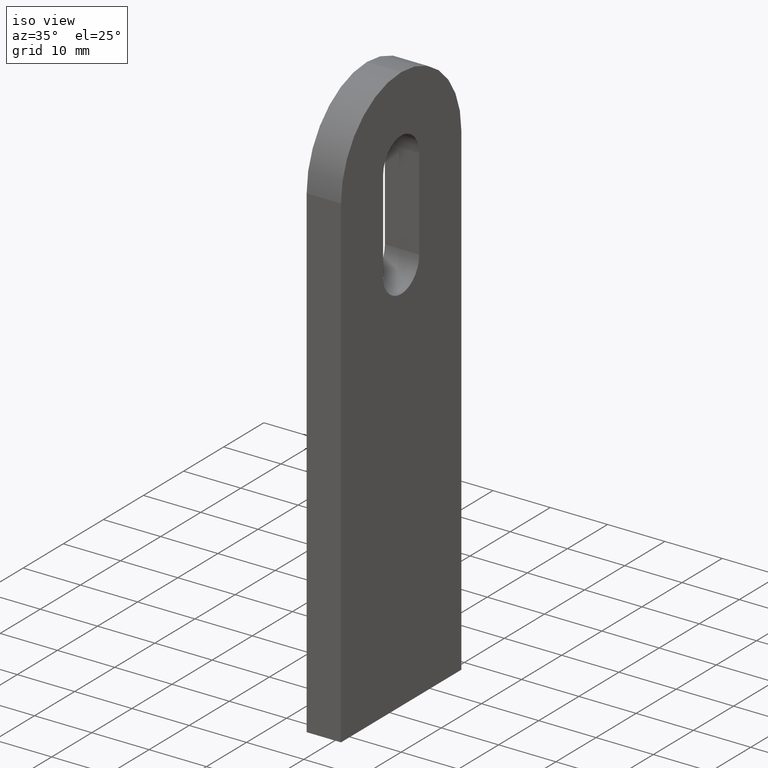
[diagram: clean part render]
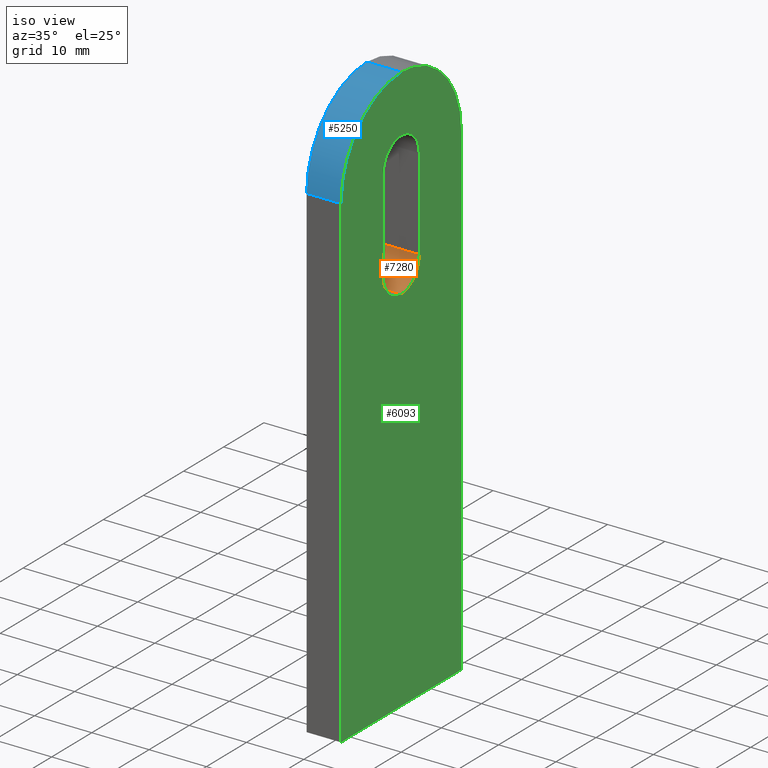
[diagram: same view with three faces highlighted in distinct colors, each labeled with its STEP entity id]
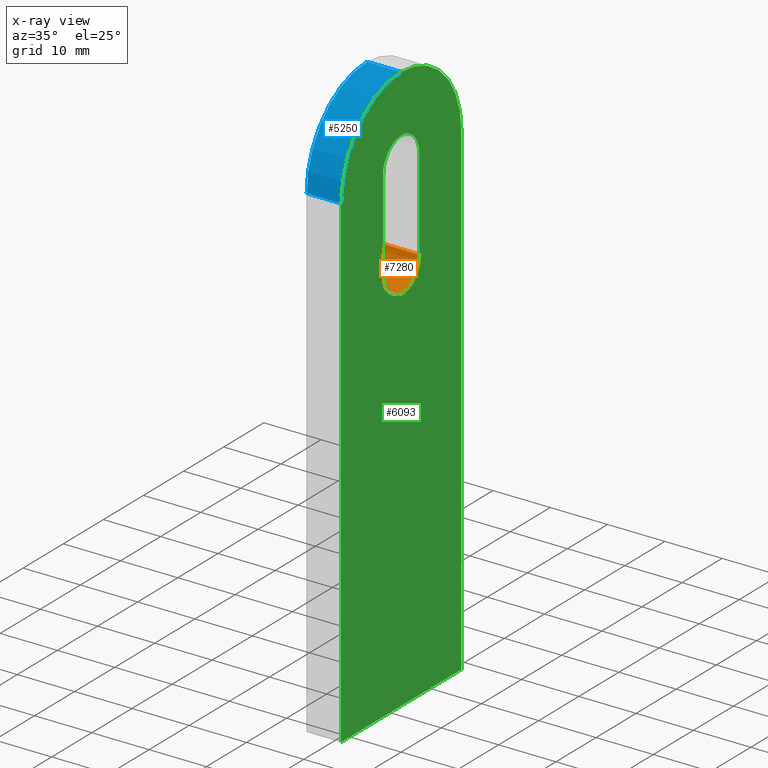
[diagram: x-ray of the same camera — body ghosted, the three highlighted faces saturated]
A machine part, iso view with three faces highlighted in distinct colors.
The next image is the same camera in x-ray (body ghosted, the three faces saturated) — at least one of them is partly hidden behind the body in this view.
Their STEP definitions:

[orange] entity #7280 — the highlighted cylindrical surface (edge-blend (fillet) strip) has radius 4.5 mm, axis along (1, -0, -0).
#91 = AXIS2_PLACEMENT_3D ( 'NONE', #1972, #9915, #1940 ) ;
#136 = ORIENTED_EDGE ( 'NONE', *, *, #734, .T. ) ;
#734 = EDGE_CURVE ( 'NONE', #8084, #8982, #1523, .T. ) ;
#858 = DIRECTION ( 'NONE',  ( 1.000000000000000000, -0.0000000000000000000, -0.0000000000000000000 ) ) ;
#1181 = VERTEX_POINT ( 'NONE', #7038 ) ;
#1436 = CARTESIAN_POINT ( 'NONE',  ( 3.000000000000000000, 7.966394000823676000E-016, 69.50000000000000000 ) ) ;
#1497 = EDGE_CURVE ( 'NONE', #1181, #8084, #6927, .T. ) ;
#1523 = CIRCLE ( 'NONE', #8381, 4.500000000000003600 ) ;
#1940 = DIRECTION ( 'NONE',  ( 0.0000000000000000000, 0.0000000000000000000, -1.000000000000000000 ) ) ;
#1972 = CARTESIAN_POINT ( 'NONE',  ( -3.000000000000000000, 7.966394000823676000E-016, 69.50000000000000000 ) ) ;
#2862 = ORIENTED_EDGE ( 'NONE', *, *, #6267, .F. ) ;
#3808 = DIRECTION ( 'NONE',  ( 1.000000000000000000, -0.0000000000000000000, -0.0000000000000000000 ) ) ;
#4408 = CARTESIAN_POINT ( 'NONE',  ( -3.000000000000000000, 7.966394000823676000E-016, 69.50000000000000000 ) ) ;
#4488 = CARTESIAN_POINT ( 'NONE',  ( 3.000000000000000000, 4.500000000000003600, 69.50000000000000000 ) ) ;
#4587 = CARTESIAN_POINT ( 'NONE',  ( -3.000000000000000000, 4.500000000000003600, 69.50000000000000000 ) ) ;
#5433 = DIRECTION ( 'NONE',  ( 0.0000000000000000000, 0.0000000000000000000, -1.000000000000000000 ) ) ;
#5522 = VECTOR ( 'NONE', #3808, 1000.000000000000000 ) ;
#6267 = EDGE_CURVE ( 'NONE', #6726, #8982, #7776, .T. ) ;
#6583 = AXIS2_PLACEMENT_3D ( 'NONE', #4408, #10008, #6746 ) ;
#6689 = VECTOR ( 'NONE', #858, 1000.000000000000000 ) ;
#6713 = CARTESIAN_POINT ( 'NONE',  ( -3.000000000000000000, 7.966394000823676000E-016, 65.00000000000000000 ) ) ;
#6726 = VERTEX_POINT ( 'NONE', #7636 ) ;
#6746 = DIRECTION ( 'NONE',  ( 0.0000000000000000000, 0.0000000000000000000, -1.000000000000000000 ) ) ;
#6860 = EDGE_LOOP ( 'NONE', ( #8912, #10209, #136, #2862 ) ) ;
#6927 = LINE ( 'NONE', #6713, #6689 ) ;
#7038 = CARTESIAN_POINT ( 'NONE',  ( -3.000000000000000000, 7.966394000823676000E-016, 65.00000000000000000 ) ) ;
#7195 = CARTESIAN_POINT ( 'NONE',  ( 3.000000000000000000, 7.966394000823676000E-016, 65.00000000000000000 ) ) ;
#7280 = ADVANCED_FACE ( 'NONE', ( #9626 ), #9134, .F. ) ;
#7480 = EDGE_CURVE ( 'NONE', #1181, #6726, #7504, .T. ) ;
#7504 = CIRCLE ( 'NONE', #6583, 4.500000000000003600 ) ;
#7636 = CARTESIAN_POINT ( 'NONE',  ( -3.000000000000000000, 4.500000000000003600, 69.50000000000000000 ) ) ;
#7776 = LINE ( 'NONE', #4587, #5522 ) ;
#8084 = VERTEX_POINT ( 'NONE', #7195 ) ;
#8381 = AXIS2_PLACEMENT_3D ( 'NONE', #1436, #9339, #5433 ) ;
#8912 = ORIENTED_EDGE ( 'NONE', *, *, #7480, .F. ) ;
#8982 = VERTEX_POINT ( 'NONE', #4488 ) ;
#9134 = CYLINDRICAL_SURFACE ( 'NONE', #91, 4.500000000000003600 ) ;
#9339 = DIRECTION ( 'NONE',  ( 1.000000000000000000, 0.0000000000000000000, 0.0000000000000000000 ) ) ;
#9626 = FACE_OUTER_BOUND ( 'NONE', #6860, .T. ) ;
#9915 = DIRECTION ( 'NONE',  ( 1.000000000000000000, -0.0000000000000000000, -0.0000000000000000000 ) ) ;
#10008 = DIRECTION ( 'NONE',  ( 1.000000000000000000, 0.0000000000000000000, 0.0000000000000000000 ) ) ;
#10209 = ORIENTED_EDGE ( 'NONE', *, *, #1497, .T. ) ;

[blue] entity #5250 — the highlighted cylindrical surface (partial cylindrical patch) has radius 15 mm, axis along (-1, -0, -0).
#92 = CARTESIAN_POINT ( 'NONE',  ( 3.000000000000000000, -15.00000000000000200, 84.99999999999998600 ) ) ;
#459 = DIRECTION ( 'NONE',  ( 0.0000000000000000000, 0.0000000000000000000, 1.000000000000000000 ) ) ;
#831 = VECTOR ( 'NONE', #9018, 1000.000000000000000 ) ;
#1056 = CARTESIAN_POINT ( 'NONE',  ( 3.000000000000000000, 0.0000000000000000000, 99.99999999999998600 ) ) ;
#1318 = ORIENTED_EDGE ( 'NONE', *, *, #1544, .F. ) ;
#1515 = CIRCLE ( 'NONE', #6488, 15.00000000000000000 ) ;
#1544 = EDGE_CURVE ( 'NONE', #2080, #9513, #1515, .T. ) ;
#2080 = VERTEX_POINT ( 'NONE', #9323 ) ;
#2423 = EDGE_CURVE ( 'NONE', #3825, #2080, #9807, .T. ) ;
#2459 = CARTESIAN_POINT ( 'NONE',  ( -3.000000000000000000, 0.0000000000000000000, 99.99999999999998600 ) ) ;
#2473 = DIRECTION ( 'NONE',  ( -1.000000000000000000, -0.0000000000000000000, -0.0000000000000000000 ) ) ;
#2493 = FACE_OUTER_BOUND ( 'NONE', #7500, .T. ) ;
#2659 = ORIENTED_EDGE ( 'NONE', *, *, #7476, .T. ) ;
#3064 = CARTESIAN_POINT ( 'NONE',  ( 3.000000000000000000, 0.0000000000000000000, 84.99999999999998600 ) ) ;
#3825 = VERTEX_POINT ( 'NONE', #9297 ) ;
#3919 = DIRECTION ( 'NONE',  ( -1.000000000000000000, -0.0000000000000000000, -0.0000000000000000000 ) ) ;
#4513 = AXIS2_PLACEMENT_3D ( 'NONE', #3064, #3919, #5552 ) ;
#4528 = VERTEX_POINT ( 'NONE', #7724 ) ;
#4580 = ORIENTED_EDGE ( 'NONE', *, *, #2423, .F. ) ;
#5049 = CARTESIAN_POINT ( 'NONE',  ( 3.000000000000000000, 0.0000000000000000000, 84.99999999999998600 ) ) ;
#5125 = DIRECTION ( 'NONE',  ( -1.000000000000000000, -0.0000000000000000000, 0.0000000000000000000 ) ) ;
#5250 = ADVANCED_FACE ( 'NONE', ( #2493 ), #5913, .T. ) ;
#5421 = CARTESIAN_POINT ( 'NONE',  ( -3.000000000000000000, 0.0000000000000000000, 84.99999999999998600 ) ) ;
#5552 = DIRECTION ( 'NONE',  ( 0.0000000000000000000, 0.0000000000000000000, 1.000000000000000000 ) ) ;
#5913 = CYLINDRICAL_SURFACE ( 'NONE', #4513, 15.00000000000000000 ) ;
#6388 = AXIS2_PLACEMENT_3D ( 'NONE', #5049, #5125, #8376 ) ;
#6488 = AXIS2_PLACEMENT_3D ( 'NONE', #5421, #8626, #459 ) ;
#6963 = ORIENTED_EDGE ( 'NONE', *, *, #9617, .T. ) ;
#7421 = VECTOR ( 'NONE', #2473, 1000.000000000000000 ) ;
#7476 = EDGE_CURVE ( 'NONE', #4528, #9513, #7632, .T. ) ;
#7500 = EDGE_LOOP ( 'NONE', ( #6963, #2659, #1318, #4580 ) ) ;
#7632 = LINE ( 'NONE', #1056, #831 ) ;
#7724 = CARTESIAN_POINT ( 'NONE',  ( 3.000000000000000000, 0.0000000000000000000, 99.99999999999998600 ) ) ;
#8239 = CIRCLE ( 'NONE', #6388, 15.00000000000000000 ) ;
#8376 = DIRECTION ( 'NONE',  ( 0.0000000000000000000, 0.0000000000000000000, 1.000000000000000000 ) ) ;
#8626 = DIRECTION ( 'NONE',  ( -1.000000000000000000, -0.0000000000000000000, 0.0000000000000000000 ) ) ;
#9018 = DIRECTION ( 'NONE',  ( -1.000000000000000000, -0.0000000000000000000, -0.0000000000000000000 ) ) ;
#9297 = CARTESIAN_POINT ( 'NONE',  ( 3.000000000000000000, -15.00000000000000200, 84.99999999999998600 ) ) ;
#9323 = CARTESIAN_POINT ( 'NONE',  ( -3.000000000000000000, -15.00000000000000200, 84.99999999999998600 ) ) ;
#9513 = VERTEX_POINT ( 'NONE', #2459 ) ;
#9617 = EDGE_CURVE ( 'NONE', #3825, #4528, #8239, .T. ) ;
#9807 = LINE ( 'NONE', #92, #7421 ) ;

[green] entity #6093 — the highlighted planar face has unit normal (-1, -0, 0).
#19 = EDGE_LOOP ( 'NONE', ( #2183, #1416, #5048, #2879, #6787 ) ) ;
#32 = AXIS2_PLACEMENT_3D ( 'NONE', #9121, #9929, #6738 ) ;
#74 = FACE_OUTER_BOUND ( 'NONE', #19, .T. ) ;
#255 = CARTESIAN_POINT ( 'NONE',  ( 3.000000000000000000, 7.966394000823676000E-016, 69.50000000000000000 ) ) ;
#329 = EDGE_CURVE ( 'NONE', #7712, #9408, #4953, .T. ) ;
#388 = DIRECTION ( 'NONE',  ( 0.0000000000000000000, 0.0000000000000000000, -1.000000000000000000 ) ) ;
#489 = ORIENTED_EDGE ( 'NONE', *, *, #9344, .F. ) ;
#538 = DIRECTION ( 'NONE',  ( -0.0000000000000000000, -1.626303258728257900E-016, 1.000000000000000000 ) ) ;
#719 = LINE ( 'NONE', #5669, #2754 ) ;
#734 = EDGE_CURVE ( 'NONE', #8084, #8982, #1523, .T. ) ;
#809 = EDGE_CURVE ( 'NONE', #8982, #7712, #7701, .T. ) ;
#898 = CARTESIAN_POINT ( 'NONE',  ( 3.000000000000000000, -4.500000000000000000, 69.50000000000000000 ) ) ;
#1097 = DIRECTION ( 'NONE',  ( 1.000000000000000000, 0.0000000000000000000, 0.0000000000000000000 ) ) ;
#1278 = ORIENTED_EDGE ( 'NONE', *, *, #734, .F. ) ;
#1312 = VERTEX_POINT ( 'NONE', #898 ) ;
#1416 = ORIENTED_EDGE ( 'NONE', *, *, #6136, .F. ) ;
#1436 = CARTESIAN_POINT ( 'NONE',  ( 3.000000000000000000, 7.966394000823676000E-016, 69.50000000000000000 ) ) ;
#1523 = CIRCLE ( 'NONE', #8381, 4.500000000000003600 ) ;
#1553 = VERTEX_POINT ( 'NONE', #6119 ) ;
#1628 = EDGE_LOOP ( 'NONE', ( #489, #1748, #8941, #1278, #2539 ) ) ;
#1748 = ORIENTED_EDGE ( 'NONE', *, *, #329, .F. ) ;
#1861 = CARTESIAN_POINT ( 'NONE',  ( 3.000000000000000000, -15.00000000000000000, -3.061616997868383000E-015 ) ) ;
#2031 = VERTEX_POINT ( 'NONE', #6054 ) ;
#2043 = AXIS2_PLACEMENT_3D ( 'NONE', #2768, #5979, #388 ) ;
#2183 = ORIENTED_EDGE ( 'NONE', *, *, #9617, .F. ) ;
#2311 = CIRCLE ( 'NONE', #32, 15.00000000000000000 ) ;
#2539 = ORIENTED_EDGE ( 'NONE', *, *, #8206, .F. ) ;
#2581 = LINE ( 'NONE', #2905, #6593 ) ;
#2715 = LINE ( 'NONE', #6154, #9250 ) ;
#2754 = VECTOR ( 'NONE', #9566, 1000.000000000000000 ) ;
#2768 = CARTESIAN_POINT ( 'NONE',  ( 3.000000000000000000, -1.776356839400250900E-015, 85.49999999999998600 ) ) ;
#2879 = ORIENTED_EDGE ( 'NONE', *, *, #4129, .F. ) ;
#2905 = CARTESIAN_POINT ( 'NONE',  ( 3.000000000000000000, -4.500000000000000900, 85.49999999999998600 ) ) ;
#2917 = DIRECTION ( 'NONE',  ( 0.0000000000000000000, 1.626303258728257900E-016, -1.000000000000000000 ) ) ;
#3736 = CIRCLE ( 'NONE', #8273, 4.500000000000003600 ) ;
#3825 = VERTEX_POINT ( 'NONE', #9297 ) ;
#4129 = EDGE_CURVE ( 'NONE', #1553, #2031, #719, .T. ) ;
#4136 = LINE ( 'NONE', #7798, #10273 ) ;
#4488 = CARTESIAN_POINT ( 'NONE',  ( 3.000000000000000000, 4.500000000000003600, 69.50000000000000000 ) ) ;
#4528 = VERTEX_POINT ( 'NONE', #7724 ) ;
#4645 = DIRECTION ( 'NONE',  ( 0.0000000000000000000, -2.040851148208008500E-017, 1.000000000000000000 ) ) ;
#4953 = CIRCLE ( 'NONE', #2043, 4.500000000000003600 ) ;
#5048 = ORIENTED_EDGE ( 'NONE', *, *, #8553, .F. ) ;
#5049 = CARTESIAN_POINT ( 'NONE',  ( 3.000000000000000000, 0.0000000000000000000, 84.99999999999998600 ) ) ;
#5125 = DIRECTION ( 'NONE',  ( -1.000000000000000000, -0.0000000000000000000, 0.0000000000000000000 ) ) ;
#5433 = DIRECTION ( 'NONE',  ( 0.0000000000000000000, 0.0000000000000000000, -1.000000000000000000 ) ) ;
#5669 = CARTESIAN_POINT ( 'NONE',  ( 3.000000000000000000, 15.00000000000000200, 84.99999999999998600 ) ) ;
#5968 = VECTOR ( 'NONE', #538, 1000.000000000000000 ) ;
#5979 = DIRECTION ( 'NONE',  ( 1.000000000000000000, 0.0000000000000000000, 0.0000000000000000000 ) ) ;
#6054 = CARTESIAN_POINT ( 'NONE',  ( 3.000000000000000000, 15.00000000000000000, -3.061616997868383000E-015 ) ) ;
#6093 = ADVANCED_FACE ( 'NONE', ( #10396, #74 ), #9330, .F. ) ;
#6119 = CARTESIAN_POINT ( 'NONE',  ( 3.000000000000000000, 15.00000000000000200, 84.99999999999998600 ) ) ;
#6136 = EDGE_CURVE ( 'NONE', #9608, #3825, #4136, .T. ) ;
#6154 = CARTESIAN_POINT ( 'NONE',  ( 3.000000000000000000, 15.00000000000000000, -3.061616997868383000E-015 ) ) ;
#6205 = CARTESIAN_POINT ( 'NONE',  ( 3.000000000000000000, -4.500000000000000900, 85.49999999999998600 ) ) ;
#6320 = CARTESIAN_POINT ( 'NONE',  ( 3.000000000000000000, 0.0000000000000000000, 84.99999999999998600 ) ) ;
#6388 = AXIS2_PLACEMENT_3D ( 'NONE', #5049, #5125, #8376 ) ;
#6593 = VECTOR ( 'NONE', #2917, 1000.000000000000000 ) ;
#6738 = DIRECTION ( 'NONE',  ( 0.0000000000000000000, 0.0000000000000000000, 1.000000000000000000 ) ) ;
#6787 = ORIENTED_EDGE ( 'NONE', *, *, #9246, .F. ) ;
#7195 = CARTESIAN_POINT ( 'NONE',  ( 3.000000000000000000, 7.966394000823676000E-016, 65.00000000000000000 ) ) ;
#7694 = DIRECTION ( 'NONE',  ( 0.0000000000000000000, -1.000000000000000000, 0.0000000000000000000 ) ) ;
#7701 = LINE ( 'NONE', #9434, #5968 ) ;
#7712 = VERTEX_POINT ( 'NONE', #8021 ) ;
#7724 = CARTESIAN_POINT ( 'NONE',  ( 3.000000000000000000, 0.0000000000000000000, 99.99999999999998600 ) ) ;
#7798 = CARTESIAN_POINT ( 'NONE',  ( 3.000000000000000000, -15.00000000000000000, -3.061616997868383000E-015 ) ) ;
#8021 = CARTESIAN_POINT ( 'NONE',  ( 3.000000000000000000, 4.500000000000000900, 85.49999999999998600 ) ) ;
#8084 = VERTEX_POINT ( 'NONE', #7195 ) ;
#8187 = AXIS2_PLACEMENT_3D ( 'NONE', #6320, #8598, #10242 ) ;
#8206 = EDGE_CURVE ( 'NONE', #1312, #8084, #3736, .T. ) ;
#8239 = CIRCLE ( 'NONE', #6388, 15.00000000000000000 ) ;
#8273 = AXIS2_PLACEMENT_3D ( 'NONE', #255, #1097, #9796 ) ;
#8376 = DIRECTION ( 'NONE',  ( 0.0000000000000000000, 0.0000000000000000000, 1.000000000000000000 ) ) ;
#8381 = AXIS2_PLACEMENT_3D ( 'NONE', #1436, #9339, #5433 ) ;
#8553 = EDGE_CURVE ( 'NONE', #2031, #9608, #2715, .T. ) ;
#8598 = DIRECTION ( 'NONE',  ( -1.000000000000000000, -0.0000000000000000000, 0.0000000000000000000 ) ) ;
#8941 = ORIENTED_EDGE ( 'NONE', *, *, #809, .F. ) ;
#8982 = VERTEX_POINT ( 'NONE', #4488 ) ;
#9121 = CARTESIAN_POINT ( 'NONE',  ( 3.000000000000000000, 0.0000000000000000000, 84.99999999999998600 ) ) ;
#9246 = EDGE_CURVE ( 'NONE', #4528, #1553, #2311, .T. ) ;
#9250 = VECTOR ( 'NONE', #7694, 1000.000000000000000 ) ;
#9297 = CARTESIAN_POINT ( 'NONE',  ( 3.000000000000000000, -15.00000000000000200, 84.99999999999998600 ) ) ;
#9330 = PLANE ( 'NONE',  #8187 ) ;
#9339 = DIRECTION ( 'NONE',  ( 1.000000000000000000, 0.0000000000000000000, 0.0000000000000000000 ) ) ;
#9344 = EDGE_CURVE ( 'NONE', #9408, #1312, #2581, .T. ) ;
#9408 = VERTEX_POINT ( 'NONE', #6205 ) ;
#9434 = CARTESIAN_POINT ( 'NONE',  ( 3.000000000000000000, 4.500000000000000900, 85.49999999999998600 ) ) ;
#9566 = DIRECTION ( 'NONE',  ( 0.0000000000000000000, -2.040851148208008500E-017, -1.000000000000000000 ) ) ;
#9608 = VERTEX_POINT ( 'NONE', #1861 ) ;
#9617 = EDGE_CURVE ( 'NONE', #3825, #4528, #8239, .T. ) ;
#9796 = DIRECTION ( 'NONE',  ( 0.0000000000000000000, 0.0000000000000000000, -1.000000000000000000 ) ) ;
#9929 = DIRECTION ( 'NONE',  ( -1.000000000000000000, -0.0000000000000000000, 0.0000000000000000000 ) ) ;
#10242 = DIRECTION ( 'NONE',  ( 0.0000000000000000000, 0.0000000000000000000, 1.000000000000000000 ) ) ;
#10273 = VECTOR ( 'NONE', #4645, 1000.000000000000000 ) ;
#10396 = FACE_BOUND ( 'NONE', #1628, .T. ) ;